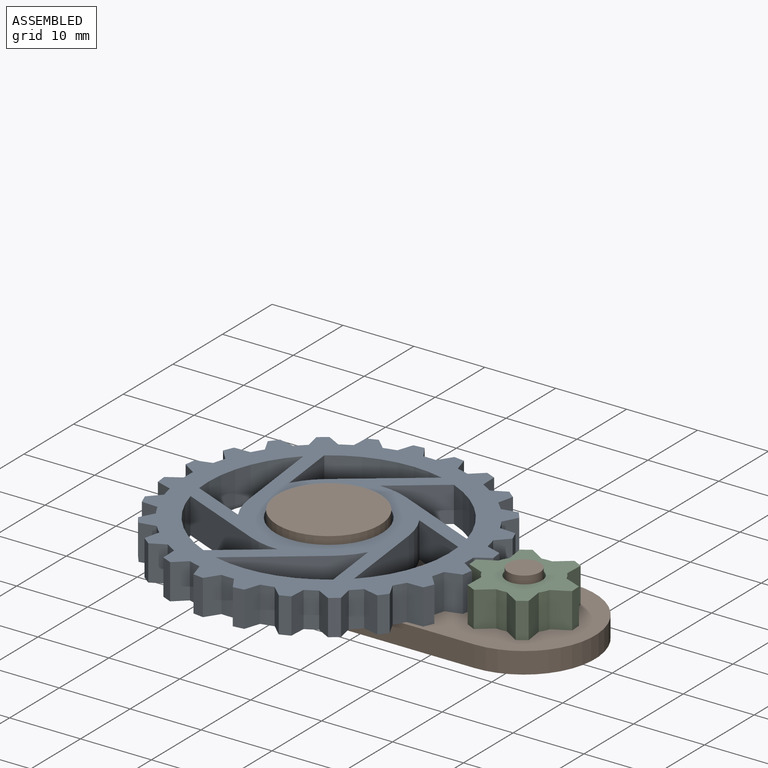
[diagram: assembled view]
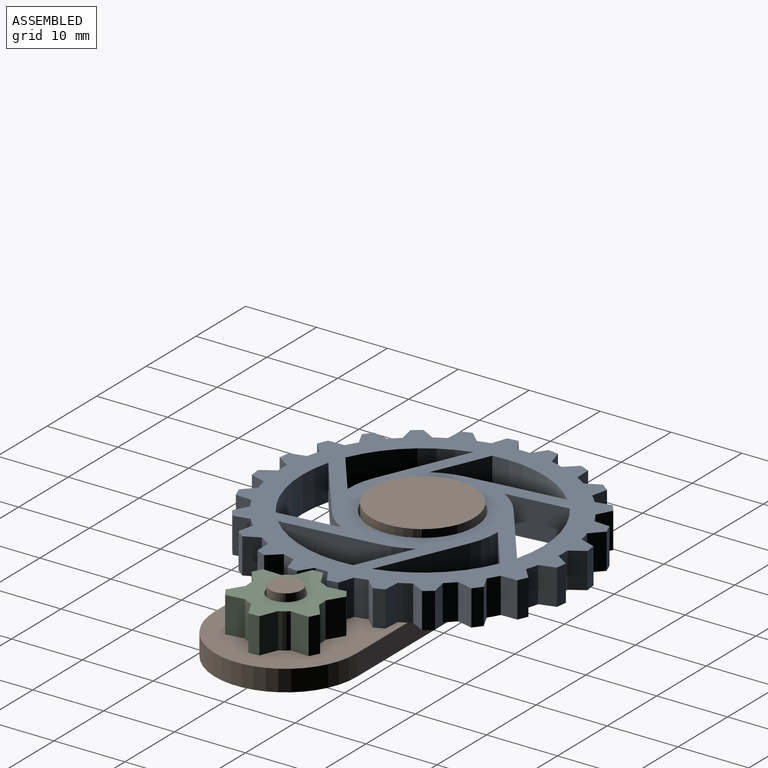
[diagram: assembled view, second angle]
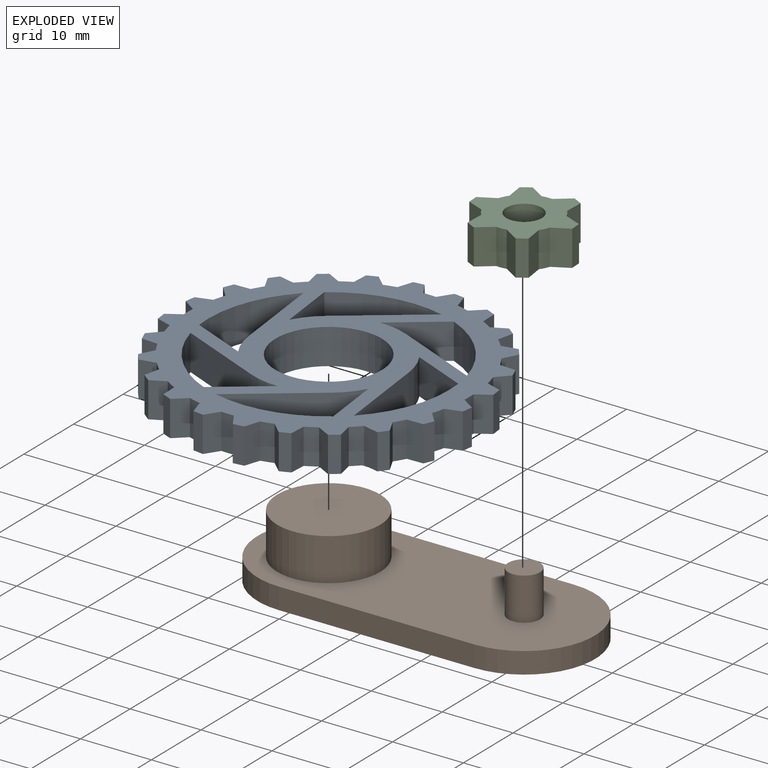
[diagram: exploded view]
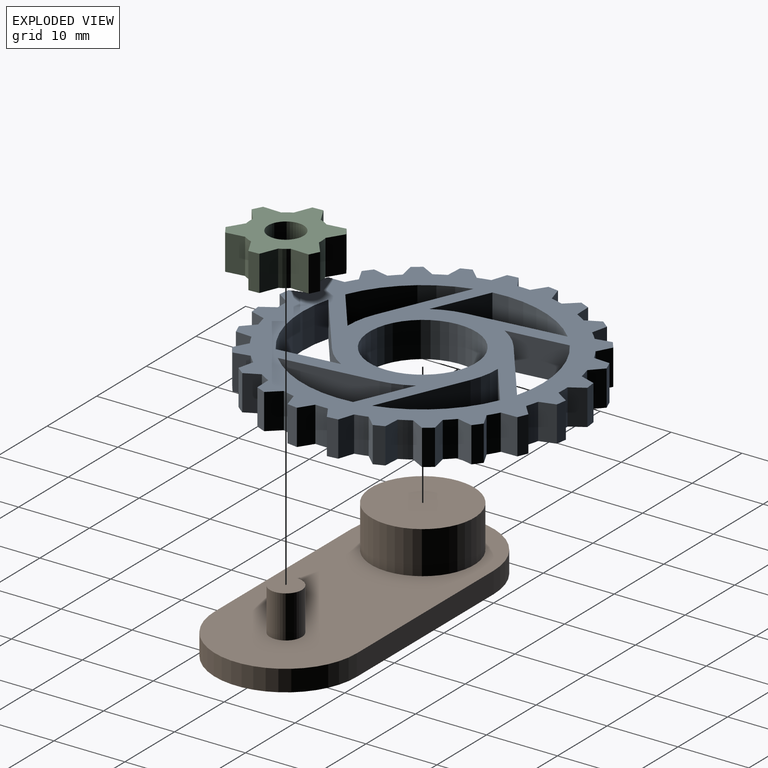
[diagram: exploded view, second angle]
ASSEMBLY  parts=3 mates=2
PART A: 123 faces, bbox 44x44x5 mm
  f0: plane 7.41x5mm, normal (0.87,-0.5,0), area 42.8mm2, adj f1,f113,f121,f122
  f1: cylinder r=17mm len=13.37mm, axis (0,0,-1), area 76.9mm2, adj f0,f2,f121,f122
  f2: plane 13.37x5mm, normal (0,1,0), area 66.8mm2, adj f1,f113,f121,f122
  f3: plane 5x2.15mm, normal (-0.34,-0.94,0), area 11.4mm2, adj f4,f114,f121,f122
  f4: plane 5x1.06mm, normal (0.71,-0.71,0), area 7.5mm2, adj f3,f5,f121,f122
  f5: plane 5x2.15mm, normal (0.94,0.34,0), area 11.4mm2, adj f4,f6,f121,f122
  f6: cylinder r=20mm len=5mm, axis (0,0,-1), area 9mm2, adj f5,f7,f121,f122
  f7: plane 5x2.28mm, normal (-0.09,-1,0), area 11.4mm2, adj f6,f8,f121,f122
  f8: plane 5x1.3mm, normal (0.87,-0.5,0), area 7.5mm2, adj f7,f9,f121,f122
  f9: plane 5x1.87mm, normal (0.82,0.57,0), area 11.4mm2, adj f8,f10,f121,f122
  f10: cylinder r=20mm len=5mm, axis (0,0,-1), area 9mm2, adj f9,f11,f121,f122
  f11: plane 5x2.25mm, normal (0.17,-0.98,0), area 11.4mm2, adj f10,f12,f121,f122
  f12: plane 5x1.45mm, normal (0.97,-0.26,0), area 7.5mm2, adj f11,f13,f121,f122
  f13: plane 5x1.75mm, normal (0.64,0.77,0), area 11.4mm2, adj f12,f14,f121,f122
  f14: cylinder r=20mm len=5mm, axis (0,0,-1), area 9mm2, adj f13,f15,f121,f122
  f15: plane 5x2.07mm, normal (0.42,-0.91,0), area 11.4mm2, adj f14,f16,f121,f122
  f16: plane 5x1.5mm, normal (1,0,0), area 7.5mm2, adj f15,f17,f121,f122
  f17: plane 5x2.07mm, normal (0.42,0.91,0), area 11.4mm2, adj f16,f18,f121,f122
  f18: cylinder r=20mm len=5mm, axis (0,0,-1), area 9mm2, adj f17,f19,f121,f122
  f19: plane 5x1.75mm, normal (0.64,-0.77,0), area 11.4mm2, adj f18,f20,f121,f122
  f20: plane 5x1.45mm, normal (0.97,0.26,0), area 7.5mm2, adj f19,f21,f121,f122
  f21: plane 5x2.25mm, normal (0.17,0.98,0), area 11.4mm2, adj f20,f22,f121,f122
  f22: cylinder r=20mm len=5mm, axis (0,0,-1), area 9mm2, adj f21,f23,f121,f122
  f23: plane 5x1.87mm, normal (0.82,-0.57,0), area 11.4mm2, adj f22,f24,f121,f122
  f24: plane 5x1.3mm, normal (0.87,0.5,0), area 7.5mm2, adj f23,f25,f121,f122
  f25: plane 5x2.28mm, normal (-0.09,1,0), area 11.4mm2, adj f24,f26,f121,f122
  f26: cylinder r=20mm len=5mm, axis (0,0,-1), area 9mm2, adj f25,f27,f121,f122
  f27: plane 5x2.15mm, normal (0.94,-0.34,0), area 11.4mm2, adj f26,f28,f121,f122
  f28: plane 5x1.06mm, normal (0.71,0.71,0), area 7.5mm2, adj f27,f29,f121,f122
  f29: plane 5x2.15mm, normal (-0.34,0.94,0), area 11.4mm2, adj f28,f30,f121,f122
  f30: cylinder r=20mm len=5mm, axis (0,0,-1), area 9mm2, adj f29,f31,f121,f122
  f31: plane 5x2.28mm, normal (1,-0.09,0), area 11.4mm2, adj f30,f32,f121,f122
  f32: plane 5x1.3mm, normal (0.5,0.87,0), area 7.5mm2, adj f31,f33,f121,f122
  f33: plane 5x1.87mm, normal (-0.57,0.82,0), area 11.4mm2, adj f32,f34,f121,f122
  f34: cylinder r=20mm len=5mm, axis (0,0,-1), area 9mm2, adj f33,f35,f121,f122
  f35: plane 5x2.25mm, normal (0.98,0.17,0), area 11.4mm2, adj f34,f36,f121,f122
  f36: plane 5x1.45mm, normal (0.26,0.97,0), area 7.5mm2, adj f35,f37,f121,f122
  f37: plane 5x1.75mm, normal (-0.77,0.64,0), area 11.4mm2, adj f36,f38,f121,f122
  f38: cylinder r=20mm len=5mm, axis (0,0,-1), area 9mm2, adj f37,f39,f121,f122
  f39: plane 5x2.07mm, normal (0.91,0.42,0), area 11.4mm2, adj f38,f40,f121,f122
  f40: plane 5x1.5mm, normal (0,1,0), area 7.5mm2, adj f39,f41,f121,f122
  f41: plane 5x2.07mm, normal (-0.91,0.42,0), area 11.4mm2, adj f40,f42,f121,f122
  f42: cylinder r=20mm len=5mm, axis (0,0,-1), area 9mm2, adj f41,f43,f121,f122
  f43: plane 5x1.75mm, normal (0.77,0.64,0), area 11.4mm2, adj f42,f44,f121,f122
  f44: plane 5x1.45mm, normal (-0.26,0.97,0), area 7.5mm2, adj f43,f45,f121,f122
  f45: plane 5x2.25mm, normal (-0.98,0.17,0), area 11.4mm2, adj f44,f46,f121,f122
  f46: cylinder r=20mm len=5mm, axis (0,0,-1), area 9mm2, adj f45,f47,f121,f122
  f47: plane 5x1.87mm, normal (0.57,0.82,0), area 11.4mm2, adj f46,f48,f121,f122
  f48: plane 5x1.3mm, normal (-0.5,0.87,0), area 7.5mm2, adj f47,f49,f121,f122
  f49: plane 5x2.28mm, normal (-1,-0.09,0), area 11.4mm2, adj f48,f50,f121,f122
  f50: cylinder r=20mm len=5mm, axis (0,0,-1), area 9mm2, adj f49,f51,f121,f122
  f51: plane 5x2.15mm, normal (0.34,0.94,0), area 11.4mm2, adj f50,f52,f121,f122
  f52: plane 5x1.06mm, normal (-0.71,0.71,0), area 7.5mm2, adj f51,f53,f121,f122
  f53: plane 5x2.15mm, normal (-0.94,-0.34,0), area 11.4mm2, adj f52,f54,f121,f122
  f54: cylinder r=20mm len=5mm, axis (0,0,-1), area 9mm2, adj f53,f55,f121,f122
  f55: plane 5x2.28mm, normal (0.09,1,0), area 11.4mm2, adj f54,f56,f121,f122
  f56: plane 5x1.3mm, normal (-0.87,0.5,0), area 7.5mm2, adj f55,f57,f121,f122
  f57: plane 5x1.87mm, normal (-0.82,-0.57,0), area 11.4mm2, adj f56,f58,f121,f122
  f58: cylinder r=20mm len=5mm, axis (0,0,-1), area 9mm2, adj f57,f59,f121,f122
  f59: plane 5x2.25mm, normal (-0.17,0.98,0), area 11.4mm2, adj f58,f60,f121,f122
  f60: plane 5x1.45mm, normal (-0.97,0.26,0), area 7.5mm2, adj f59,f61,f121,f122
  f61: plane 5x1.75mm, normal (-0.64,-0.77,0), area 11.4mm2, adj f60,f62,f121,f122
  f62: cylinder r=20mm len=5mm, axis (0,0,-1), area 9mm2, adj f61,f63,f121,f122
  f63: plane 5x2.07mm, normal (-0.42,0.91,0), area 11.4mm2, adj f62,f64,f121,f122
  f64: plane 5x1.5mm, normal (-1,0,0), area 7.5mm2, adj f63,f65,f121,f122
  f65: plane 5x2.07mm, normal (-0.42,-0.91,0), area 11.4mm2, adj f64,f66,f121,f122
  f66: cylinder r=20mm len=5mm, axis (0,0,-1), area 9mm2, adj f65,f67,f121,f122
  f67: plane 5x1.75mm, normal (-0.64,0.77,0), area 11.4mm2, adj f66,f68,f121,f122
  f68: plane 5x1.45mm, normal (-0.97,-0.26,0), area 7.5mm2, adj f67,f69,f121,f122
  f69: plane 5x2.25mm, normal (-0.17,-0.98,0), area 11.4mm2, adj f68,f70,f121,f122
  f70: cylinder r=20mm len=5mm, axis (0,0,-1), area 9mm2, adj f69,f71,f121,f122
  f71: plane 5x1.87mm, normal (-0.82,0.57,0), area 11.4mm2, adj f70,f72,f121,f122
  f72: plane 5x1.3mm, normal (-0.87,-0.5,0), area 7.5mm2, adj f71,f73,f121,f122
  f73: plane 5x2.28mm, normal (0.09,-1,0), area 11.4mm2, adj f72,f74,f121,f122
  f74: cylinder r=20mm len=5mm, axis (0,0,-1), area 9mm2, adj f73,f75,f121,f122
  f75: plane 5x2.15mm, normal (-0.94,0.34,0), area 11.4mm2, adj f74,f76,f121,f122
  f76: plane 5x1.06mm, normal (-0.71,-0.71,0), area 7.5mm2, adj f75,f77,f121,f122
  f77: plane 5x2.15mm, normal (0.34,-0.94,0), area 11.4mm2, adj f76,f78,f121,f122
  f78: cylinder r=20mm len=5mm, axis (0,0,-1), area 9mm2, adj f77,f79,f121,f122
  f79: plane 5x2.28mm, normal (-1,0.09,0), area 11.4mm2, adj f78,f80,f121,f122
  f80: plane 5x1.3mm, normal (-0.5,-0.87,0), area 7.5mm2, adj f79,f81,f121,f122
  f81: plane 5x1.87mm, normal (0.57,-0.82,0), area 11.4mm2, adj f80,f82,f121,f122
  f82: cylinder r=20mm len=5mm, axis (0,0,-1), area 9mm2, adj f81,f83,f121,f122
  f83: plane 5x2.25mm, normal (-0.98,-0.17,0), area 11.4mm2, adj f82,f84,f121,f122
  f84: plane 5x1.45mm, normal (-0.26,-0.97,0), area 7.5mm2, adj f83,f85,f121,f122
  f85: plane 5x1.75mm, normal (0.77,-0.64,0), area 11.4mm2, adj f84,f86,f121,f122
  f86: cylinder r=20mm len=5mm, axis (0,0,-1), area 9mm2, adj f85,f87,f121,f122
  f87: plane 5x2.07mm, normal (-0.91,-0.42,0), area 11.4mm2, adj f86,f88,f121,f122
  f88: plane 5x1.5mm, normal (0,-1,0), area 7.5mm2, adj f87,f89,f121,f122
  f89: plane 5x2.07mm, normal (0.91,-0.42,0), area 11.4mm2, adj f88,f90,f121,f122
  f90: cylinder r=20mm len=5mm, axis (0,0,-1), area 9mm2, adj f89,f91,f121,f122
  f91: plane 5x1.75mm, normal (-0.77,-0.64,0), area 11.4mm2, adj f90,f92,f121,f122
  f92: plane 5x1.45mm, normal (0.26,-0.97,0), area 7.5mm2, adj f91,f93,f121,f122
  f93: plane 5x2.25mm, normal (0.98,-0.17,0), area 11.4mm2, adj f92,f94,f121,f122
  f94: cylinder r=20mm len=5mm, axis (0,0,-1), area 9mm2, adj f93,f95,f121,f122
  f95: plane 5x1.87mm, normal (-0.57,-0.82,0), area 11.4mm2, adj f94,f96,f121,f122
  f96: plane 5x1.3mm, normal (0.5,-0.87,0), area 7.5mm2, adj f95,f97,f121,f122
  f97: plane 5x2.28mm, normal (1,0.09,0), area 11.4mm2, adj f96,f114,f121,f122
  f98: cylinder r=17mm len=12.31mm, axis (0,0,-1), area 76.9mm2, adj f99,f115,f121,f122
  f99: plane 11.58x6.69mm, normal (-0.87,0.5,0), area 66.8mm2, adj f98,f100,f121,f122
  f100: cylinder r=10.5mm len=5mm, axis (0,0,-1), area 22mm2, adj f99,f115,f121,f122
  f101: cylinder r=17mm len=14.83mm, axis (0,0,-1), area 76.9mm2, adj f102,f116,f121,f122
  f102: plane 11.58x6.69mm, normal (-0.87,-0.5,0), area 66.8mm2, adj f101,f103,f121,f122
  f103: cylinder r=10.5mm len=5mm, axis (0,0,-1), area 22mm2, adj f102,f116,f121,f122
  f104: cylinder r=17mm len=13.37mm, axis (0,0,-1), area 76.9mm2, adj f105,f117,f121,f122
  f105: plane 13.37x5mm, normal (0,-1,0), area 66.8mm2, adj f104,f106,f121,f122
  f106: cylinder r=10.5mm len=5mm, axis (0,0,-1), area 22mm2, adj f105,f117,f121,f122
  f107: cylinder r=17mm len=12.31mm, axis (0,0,-1), area 76.9mm2, adj f108,f118,f121,f122
  f108: plane 11.58x6.69mm, normal (0.87,-0.5,0), area 66.8mm2, adj f107,f109,f121,f122
  f109: cylinder r=10.5mm len=5mm, axis (0,0,-1), area 22mm2, adj f108,f118,f121,f122
  f110: cylinder r=17mm len=14.83mm, axis (0,0,-1), area 76.9mm2, adj f111,f119,f121,f122
  f111: plane 11.58x6.69mm, normal (0.87,0.5,0), area 66.8mm2, adj f110,f112,f121,f122
  f112: cylinder r=10.5mm len=5mm, axis (0,0,-1), area 22mm2, adj f111,f119,f121,f122
  f113: cylinder r=10.5mm len=5mm, axis (0,0,-1), area 22mm2, adj f0,f2,f121,f122
  f114: cylinder r=20mm len=5mm, axis (0,0,-1), area 9mm2, adj f3,f97,f121,f122
  f115: plane 7.41x5mm, normal (0.87,0.5,0), area 42.8mm2, adj f98,f100,f121,f122
  f116: plane 8.56x5mm, normal (0,1,0), area 42.8mm2, adj f101,f103,f121,f122
  f117: plane 7.41x5mm, normal (-0.87,0.5,0), area 42.8mm2, adj f104,f106,f121,f122
  f118: plane 7.41x5mm, normal (-0.87,-0.5,0), area 42.8mm2, adj f107,f109,f121,f122
  f119: plane 8.56x5mm, normal (0,-1,0), area 42.8mm2, adj f110,f112,f121,f122
  f120: cylinder r=7.5mm len=15mm, axis (0,0,-1), area 235.6mm2, adj f121,f122
  f121: plane 44x44mm, normal (0,0,1), area 755.7mm2, adj f0,f1,f2,f3,f4,f5,f6,f7
  f122: plane 44x44mm, normal (0,0,-1), area 755.7mm2, adj f0,f1,f2,f3,f4,f5,f6,f7
PART B: 10 faces, bbox 47.6x20x9 mm
  f0: plane 27.56x3mm, normal (0,1,0), area 82.7mm2, adj f2,f3,f8,f9
  f1: plane 27.56x3mm, normal (0,-1,0), area 82.7mm2, adj f2,f3,f8,f9
  f2: plane 47.56x20mm, normal (0,0,-1), area 865.4mm2, adj f0,f1,f8,f9
  f3: plane 47.56x20mm, normal (0,0,1), area 684.3mm2, adj f0,f1,f4,f6,f8,f9
  f4: cylinder r=7.25mm len=14.5mm, axis (0,0,-1), area 273.3mm2, adj f3,f5
  f5: plane 14.5x14.5mm, normal (0,0,1), area 165.1mm2, adj f4
  f6: cylinder r=2.25mm len=6mm, axis (0,0,-1), area 84.8mm2, adj f3,f7
  f7: plane 4.5x4.5mm, normal (0,0,1), area 15.9mm2, adj f6
  f8: cylinder r=10mm len=20mm, axis (0,0,1), area 94.2mm2, adj f0,f1,f2,f3
  f9: cylinder r=10mm len=20mm, axis (0,0,1), area 94.2mm2, adj f0,f1,f2,f3
PART C: 29 faces, bbox 12.9x14x5 mm
  f0: plane 5x2.13mm, normal (0.82,0.57,0), area 13mm2, adj f1,f25,f27,f28
  f1: plane 5x0mm, normal (0.99,-0.14,0), area 0mm2, adj f0,f2,f27,f28
  f2: cylinder r=5mm len=5mm, axis (0,0,-1), area 7.3mm2, adj f1,f3,f27,f28
  f3: plane 5x0mm, normal (0.99,0.14,0), area 0mm2, adj f2,f4,f27,f28
  f4: plane 5x2.13mm, normal (0.82,-0.57,0), area 13mm2, adj f3,f5,f27,f28
  f5: plane 5x1.3mm, normal (0.87,0.5,0), area 7.5mm2, adj f4,f6,f27,f28
  f6: plane 5x2.59mm, normal (-0.09,1,0), area 13mm2, adj f5,f7,f27,f28
  f7: cylinder r=5mm len=5mm, axis (0,0,-1), area 7.3mm2, adj f6,f8,f27,f28
  f8: plane 5x2.35mm, normal (0.91,0.42,0), area 13mm2, adj f7,f9,f27,f28
  f9: plane 5x1.5mm, normal (0,1,0), area 7.5mm2, adj f8,f10,f27,f28
  f10: plane 5x2.35mm, normal (-0.91,0.42,0), area 13mm2, adj f9,f11,f27,f28
  f11: cylinder r=5mm len=5mm, axis (0,0,-1), area 7.3mm2, adj f10,f12,f27,f28
  f12: plane 5x2.59mm, normal (0.09,1,0), area 13mm2, adj f11,f13,f27,f28
  f13: plane 5x1.3mm, normal (-0.87,0.5,0), area 7.5mm2, adj f12,f14,f27,f28
  f14: plane 5x2.13mm, normal (-0.82,-0.57,0), area 13mm2, adj f13,f15,f27,f28
  f15: cylinder r=5mm len=5mm, axis (0,0,-1), area 7.3mm2, adj f14,f16,f27,f28
  f16: plane 5x2.13mm, normal (-0.82,0.57,0), area 13mm2, adj f15,f17,f27,f28
  f17: plane 5x1.3mm, normal (-0.87,-0.5,0), area 7.5mm2, adj f16,f18,f27,f28
  f18: plane 5x2.59mm, normal (0.09,-1,0), area 13mm2, adj f17,f19,f27,f28
  f19: cylinder r=5mm len=5mm, axis (0,0,-1), area 7.3mm2, adj f18,f20,f27,f28
  f20: plane 5x2.35mm, normal (-0.91,-0.42,0), area 13mm2, adj f19,f21,f27,f28
  f21: plane 5x1.5mm, normal (0,-1,0), area 7.5mm2, adj f20,f22,f27,f28
  f22: plane 5x2.35mm, normal (0.91,-0.42,0), area 13mm2, adj f21,f23,f27,f28
  f23: cylinder r=5mm len=5mm, axis (0,0,-1), area 7.3mm2, adj f22,f24,f27,f28
  f24: plane 5x2.59mm, normal (-0.09,-1,0), area 13mm2, adj f23,f25,f27,f28
  f25: plane 5x1.3mm, normal (0.87,-0.5,0), area 7.5mm2, adj f0,f24,f27,f28
  f26: cylinder r=2.5mm len=5mm, axis (0,0,-1), area 78.5mm2, adj f27,f28
  f27: plane 14x12.87mm, normal (0,0,1), area 90.3mm2, adj f0,f1,f2,f3,f4,f5,f6,f7
  f28: plane 14x12.87mm, normal (0,0,-1), area 90.3mm2, adj f0,f1,f2,f3,f4,f5,f6,f7
PLACE A rot(axis=(0,0,-1),143.3deg) t=(0,0,0)mm
PLACE B at identity fixed
PLACE C rot(axis=(0,0,-1),146.9deg) t=(50.66,15.04,0)mm
MATE revolute A.f120 <-> B.f4  axis (0,0,-1) through (0,0,0)mm
MATE revolute C.f15 <-> B.f6  axis (0,0,-1) through (27.56,0,0)mm
